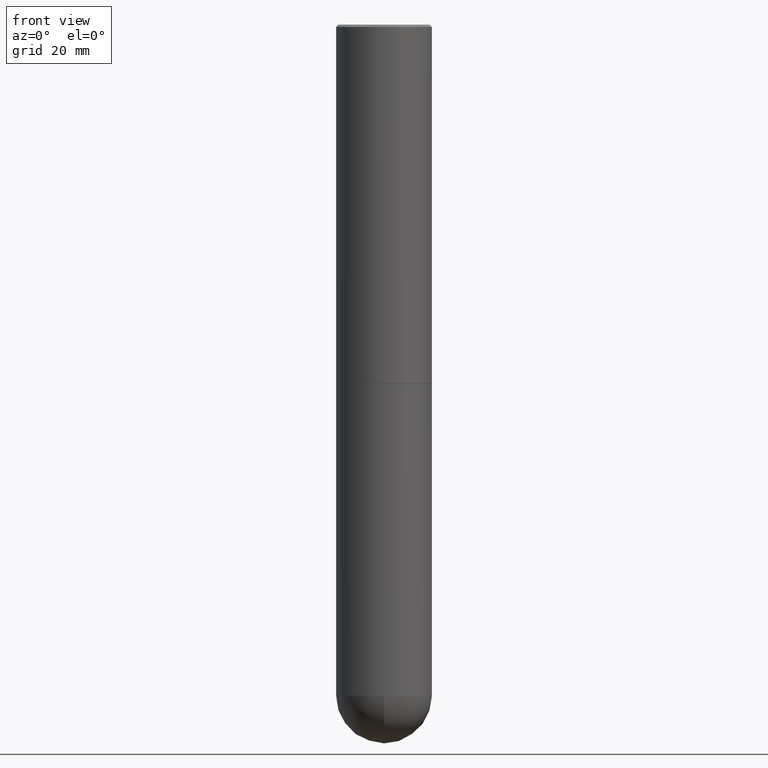
[diagram: clean part render]
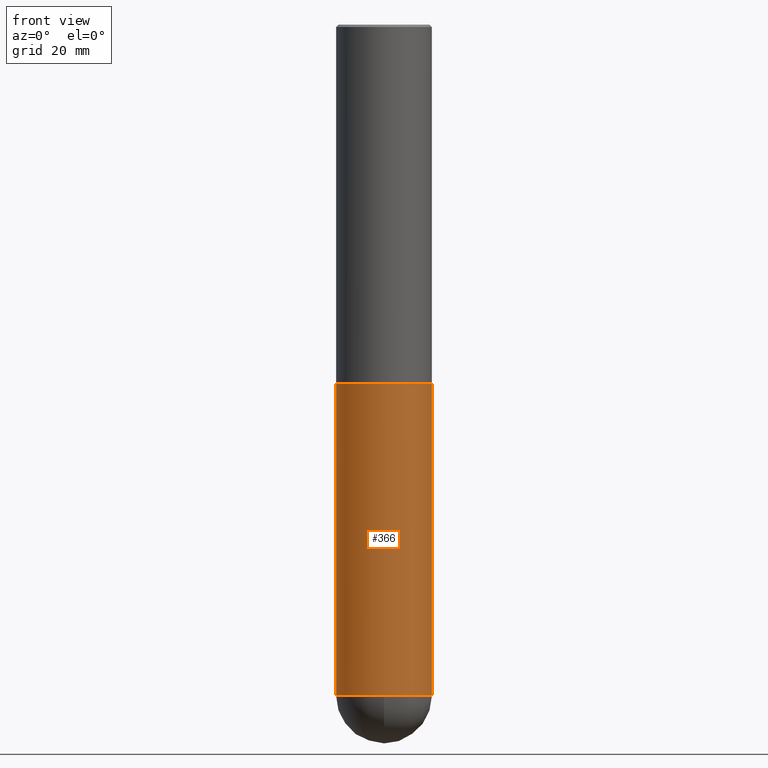
[diagram: same view with one face highlighted and labeled with its STEP entity id]
A machine part, front view. The second image highlights one B-rep face of the part: STEP entity #366.
In plain terms, the highlighted cylindrical surface (partial cylindrical patch) has radius 10 mm, axis along (-0, 0, 1).
Its self-contained STEP definition (entity closure, byte-faithful):
#1 = DIRECTION ( 'NONE',  ( -2.445468806185136877E-29, 3.491481338843145188E-15, 1.000000000000000000 ) ) ;
#28 = DIRECTION ( 'NONE',  ( -2.445468806185136597E-29, 3.491481338843145583E-15, 1.000000000000000000 ) ) ;
#55 = CARTESIAN_POINT ( 'NONE',  ( -0.3937000000000001054, 2.797406750687515181E-15, -1.936584745033357016E-29 ) ) ;
#86 = LINE ( 'NONE', #392, #279 ) ;
#91 = CARTESIAN_POINT ( 'NONE',  ( 0.3937000000000000499, -1.305848935540723823E-14, -2.952700000000000102 ) ) ;
#95 = VERTEX_POINT ( 'NONE', #307 ) ;
#97 = ORIENTED_EDGE ( 'NONE', *, *, #308, .T. ) ;
#99 = VERTEX_POINT ( 'NONE', #276 ) ;
#100 = EDGE_LOOP ( 'NONE', ( #200, #97, #157, #390, #393 ) ) ;
#102 = CIRCLE ( 'NONE', #132, 0.3937000000000001054 ) ;
#116 = CIRCLE ( 'NONE', #174, 0.3937000000000000499 ) ;
#128 = VERTEX_POINT ( 'NONE', #298 ) ;
#130 = CARTESIAN_POINT ( 'NONE',  ( 0.000000000000000000, 0.000000000000000000, 0.000000000000000000 ) ) ;
#132 = AXIS2_PLACEMENT_3D ( 'NONE', #359, #386, #290 ) ;
#151 = CARTESIAN_POINT ( 'NONE',  ( 7.220735744022852519E-29, -1.030929694920215502E-14, -2.952700000000000102 ) ) ;
#157 = ORIENTED_EDGE ( 'NONE', *, *, #402, .T. ) ;
#174 = AXIS2_PLACEMENT_3D ( 'NONE', #151, #28, #280 ) ;
#179 = CARTESIAN_POINT ( 'NONE',  ( 1.347893496593123646E-28, -1.924434684343564878E-14, -5.511800000000000033 ) ) ;
#183 = EDGE_CURVE ( 'NONE', #99, #95, #315, .T. ) ;
#187 = DIRECTION ( 'NONE',  ( -2.445468806185136597E-29, 3.491481338843145583E-15, 1.000000000000000000 ) ) ;
#200 = ORIENTED_EDGE ( 'NONE', *, *, #183, .F. ) ;
#217 = DIRECTION ( 'NONE',  ( -2.445468806185136877E-29, 3.491481338843145188E-15, 1.000000000000000000 ) ) ;
#248 = DIRECTION ( 'NONE',  ( -2.445468806185136597E-29, 3.491481338843145583E-15, 1.000000000000000000 ) ) ;
#257 = FACE_OUTER_BOUND ( 'NONE', #100, .T. ) ;
#259 = VERTEX_POINT ( 'NONE', #410 ) ;
#260 = AXIS2_PLACEMENT_3D ( 'NONE', #179, #248, #311 ) ;
#276 = CARTESIAN_POINT ( 'NONE',  ( -0.3937000000000001054, -1.197941514563138553E-14, -5.511800000000000033 ) ) ;
#279 = VECTOR ( 'NONE', #1, 39.37007874015748143 ) ;
#280 = DIRECTION ( 'NONE',  ( 1.000000000000000000, -6.982962677686267499E-15, 0.000000000000000000 ) ) ;
#288 = CYLINDRICAL_SURFACE ( 'NONE', #373, 0.3937000000000001054 ) ;
#290 = DIRECTION ( 'NONE',  ( 1.000000000000000000, -6.982962677686266711E-15, 0.000000000000000000 ) ) ;
#298 = CARTESIAN_POINT ( 'NONE',  ( -2.797406750687381075E-15, -0.3937000000000196454, -5.511799999999999145 ) ) ;
#307 = CARTESIAN_POINT ( 'NONE',  ( -0.3937000000000000499, -1.197941514563138553E-14, -2.952700000000000102 ) ) ;
#308 = EDGE_CURVE ( 'NONE', #99, #128, #337, .T. ) ;
#311 = DIRECTION ( 'NONE',  ( 1.000000000000000000, -6.982962677686266711E-15, 0.000000000000000000 ) ) ;
#314 = VECTOR ( 'NONE', #217, 39.37007874015748143 ) ;
#315 = LINE ( 'NONE', #55, #314 ) ;
#318 = DIRECTION ( 'NONE',  ( 1.000000000000000000, -6.982962677686266711E-15, 4.876176775795935793E-29 ) ) ;
#337 = CIRCLE ( 'NONE', #260, 0.3937000000000001054 ) ;
#345 = EDGE_CURVE ( 'NONE', #95, #388, #116, .T. ) ;
#352 = EDGE_CURVE ( 'NONE', #259, #388, #86, .T. ) ;
#359 = CARTESIAN_POINT ( 'NONE',  ( 1.347893496593123646E-28, -1.924434684343564878E-14, -5.511800000000000033 ) ) ;
#366 = ADVANCED_FACE ( 'NONE', ( #257 ), #288, .T. ) ;
#373 = AXIS2_PLACEMENT_3D ( 'NONE', #130, #187, #318 ) ;
#386 = DIRECTION ( 'NONE',  ( -2.445468806185136597E-29, 3.491481338843145583E-15, 1.000000000000000000 ) ) ;
#388 = VERTEX_POINT ( 'NONE', #91 ) ;
#390 = ORIENTED_EDGE ( 'NONE', *, *, #352, .T. ) ;
#392 = CARTESIAN_POINT ( 'NONE',  ( 0.3937000000000001054, -2.749192406205084005E-15, 1.919750796630860452E-29 ) ) ;
#393 = ORIENTED_EDGE ( 'NONE', *, *, #345, .F. ) ;
#402 = EDGE_CURVE ( 'NONE', #128, #259, #102, .T. ) ;
#410 = CARTESIAN_POINT ( 'NONE',  ( 0.3937000000000001054, -1.752601430252398275E-14, -5.511800000000000033 ) ) ;